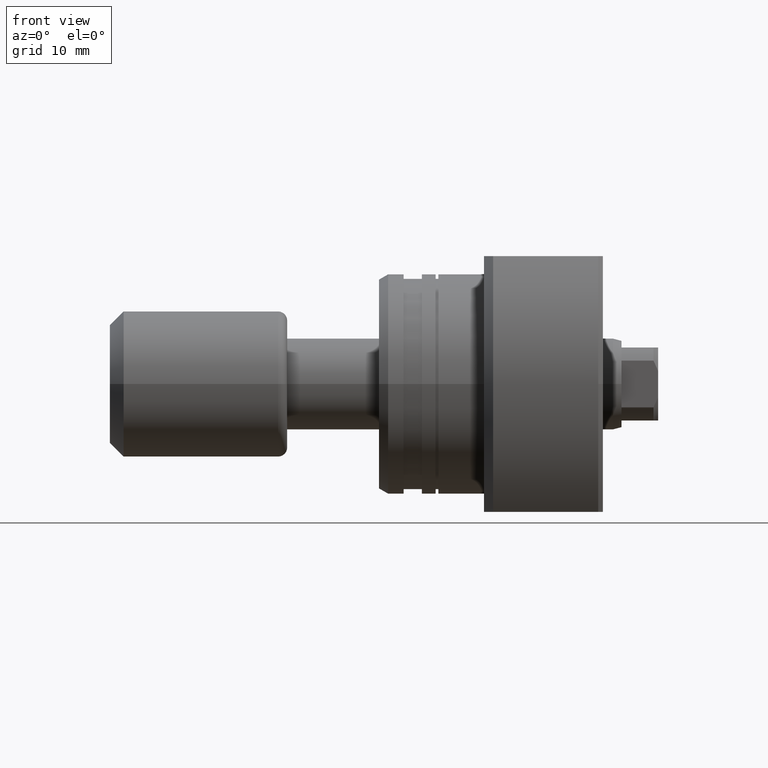
[diagram: clean part render]
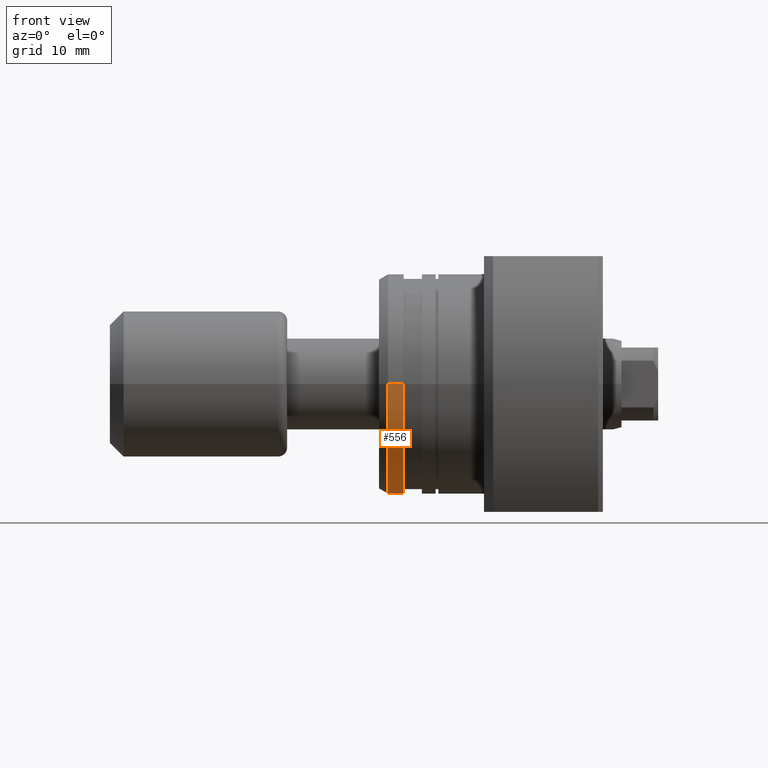
[diagram: same view with one face highlighted and labeled with its STEP entity id]
A machine part, front view. The second image highlights one B-rep face of the part: STEP entity #556.
In plain terms, the highlighted cylindrical surface (partial cylindrical patch) has radius 12 mm, axis along (1, 0, 0).
Its self-contained STEP definition (entity closure, byte-faithful):
#19 = FACE_OUTER_BOUND ( 'NONE', #1196, .T. ) ;
#96 = DIRECTION ( 'NONE',  ( 0.000000000000000000, 1.000000000000000000, 0.000000000000000000 ) ) ;
#136 = ORIENTED_EDGE ( 'NONE', *, *, #2233, .F. ) ;
#164 = AXIS2_PLACEMENT_3D ( 'NONE', #229, #3015, #259 ) ;
#229 = CARTESIAN_POINT ( 'NONE',  ( 0.9999999999997822853, 4.998558363876719794E-19, 0.000000000000000000 ) ) ;
#251 = ORIENTED_EDGE ( 'NONE', *, *, #1240, .T. ) ;
#259 = DIRECTION ( 'NONE',  ( 0.000000000000000000, 1.000000000000000000, 0.000000000000000000 ) ) ;
#450 = VERTEX_POINT ( 'NONE', #1025 ) ;
#481 = DIRECTION ( 'NONE',  ( 1.000000000000000000, 4.998558363877804092E-19, -0.000000000000000000 ) ) ;
#556 = ADVANCED_FACE ( 'NONE', ( #19 ), #1260, .T. ) ;
#694 = VECTOR ( 'NONE', #481, 1000.000000000000000 ) ;
#849 = VECTOR ( 'NONE', #1961, 1000.000000000000000 ) ;
#908 = VERTEX_POINT ( 'NONE', #2450 ) ;
#952 = DIRECTION ( 'NONE',  ( 1.000000000000000000, 4.998558363877804092E-19, -0.000000000000000000 ) ) ;
#1025 = CARTESIAN_POINT ( 'NONE',  ( 2.699999999999782574, -11.99999999999999467, 1.469576158976823356E-15 ) ) ;
#1032 = CARTESIAN_POINT ( 'NONE',  ( 24.50000000000000355, 11.99999999999999645, 0.000000000000000000 ) ) ;
#1068 = CIRCLE ( 'NONE', #164, 11.99999999999999645 ) ;
#1196 = EDGE_LOOP ( 'NONE', ( #136, #2432, #251, #1965 ) ) ;
#1240 = EDGE_CURVE ( 'NONE', #1755, #908, #2729, .T. ) ;
#1260 = CYLINDRICAL_SURFACE ( 'NONE', #1427, 11.99999999999999645 ) ;
#1361 = DIRECTION ( 'NONE',  ( 1.000000000000000000, 4.998558363877804092E-19, -0.000000000000000000 ) ) ;
#1427 = AXIS2_PLACEMENT_3D ( 'NONE', #2186, #952, #2931 ) ;
#1447 = EDGE_CURVE ( 'NONE', #2379, #1755, #1068, .T. ) ;
#1547 = AXIS2_PLACEMENT_3D ( 'NONE', #1874, #1361, #96 ) ;
#1755 = VERTEX_POINT ( 'NONE', #2906 ) ;
#1874 = CARTESIAN_POINT ( 'NONE',  ( 2.699999999999782574, 1.349610758246898925E-18, 0.000000000000000000 ) ) ;
#1961 = DIRECTION ( 'NONE',  ( 1.000000000000000000, 4.998558363877804092E-19, -0.000000000000000000 ) ) ;
#1965 = ORIENTED_EDGE ( 'NONE', *, *, #3043, .F. ) ;
#2099 = CIRCLE ( 'NONE', #1547, 11.99999999999999467 ) ;
#2186 = CARTESIAN_POINT ( 'NONE',  ( 24.50000000000000355, 1.224646799150062205E-17, 0.000000000000000000 ) ) ;
#2233 = EDGE_CURVE ( 'NONE', #2379, #450, #2924, .T. ) ;
#2247 = CARTESIAN_POINT ( 'NONE',  ( 0.9999999999997822853, -11.99999999999999645, 1.469576158976823356E-15 ) ) ;
#2379 = VERTEX_POINT ( 'NONE', #2247 ) ;
#2432 = ORIENTED_EDGE ( 'NONE', *, *, #1447, .T. ) ;
#2449 = CARTESIAN_POINT ( 'NONE',  ( 24.50000000000000355, -11.99999999999999645, 1.469576158976823553E-15 ) ) ;
#2450 = CARTESIAN_POINT ( 'NONE',  ( 2.699999999999782574, 11.99999999999999467, 0.000000000000000000 ) ) ;
#2729 = LINE ( 'NONE', #1032, #694 ) ;
#2906 = CARTESIAN_POINT ( 'NONE',  ( 0.9999999999997822853, 11.99999999999999645, 0.000000000000000000 ) ) ;
#2924 = LINE ( 'NONE', #2449, #849 ) ;
#2931 = DIRECTION ( 'NONE',  ( 0.000000000000000000, 1.000000000000000000, 0.000000000000000000 ) ) ;
#3015 = DIRECTION ( 'NONE',  ( 1.000000000000000000, 4.998558363877804092E-19, -0.000000000000000000 ) ) ;
#3043 = EDGE_CURVE ( 'NONE', #450, #908, #2099, .T. ) ;